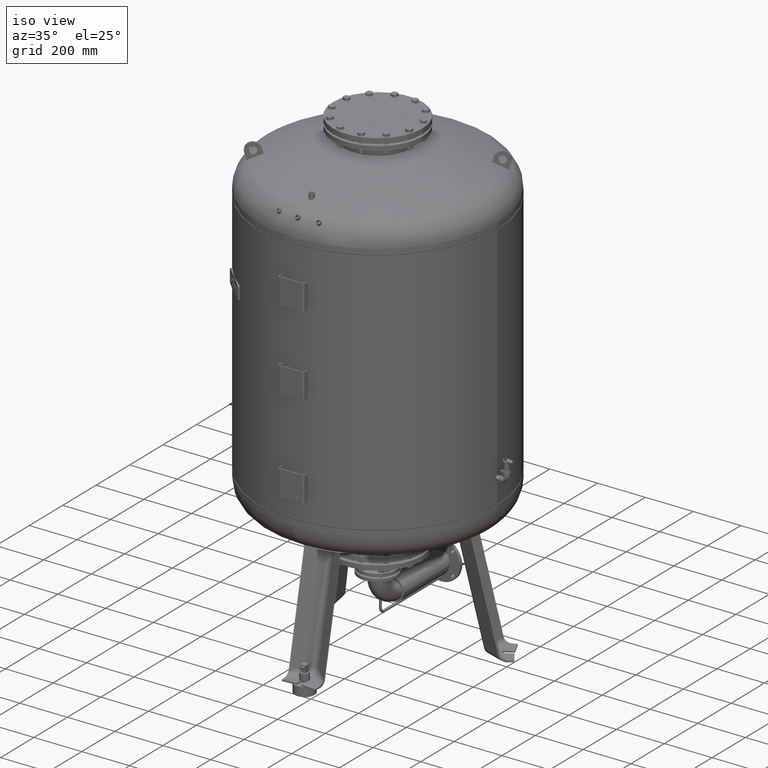
[diagram: clean part render]
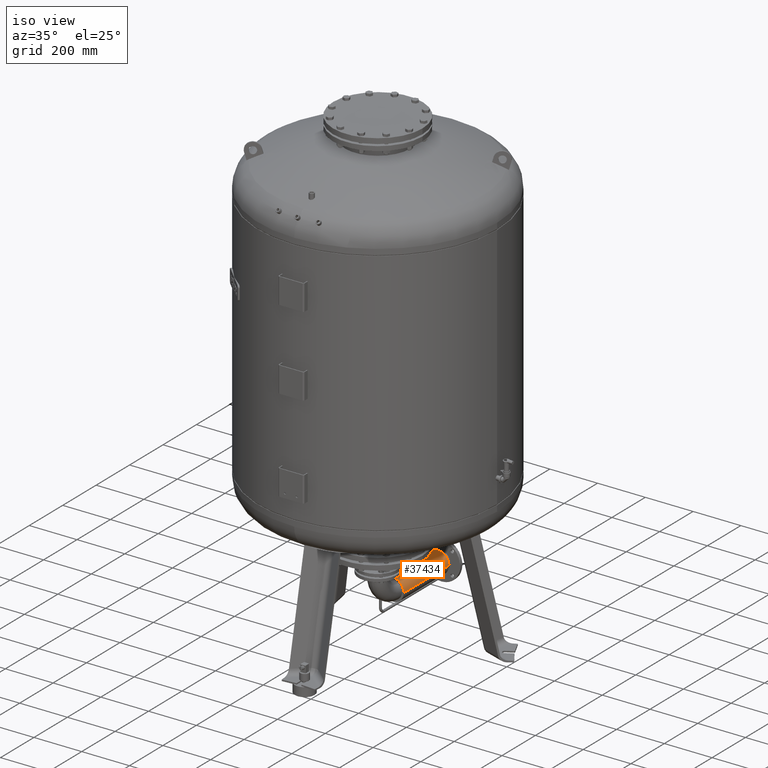
[diagram: same view with one face highlighted and labeled with its STEP entity id]
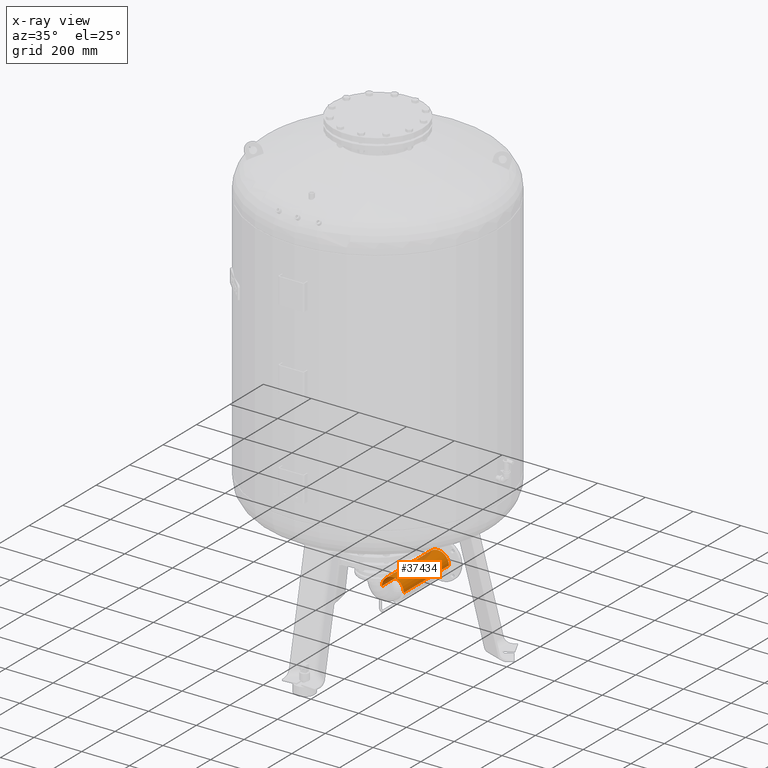
[diagram: x-ray of the same camera — body ghosted, the highlighted face saturated]
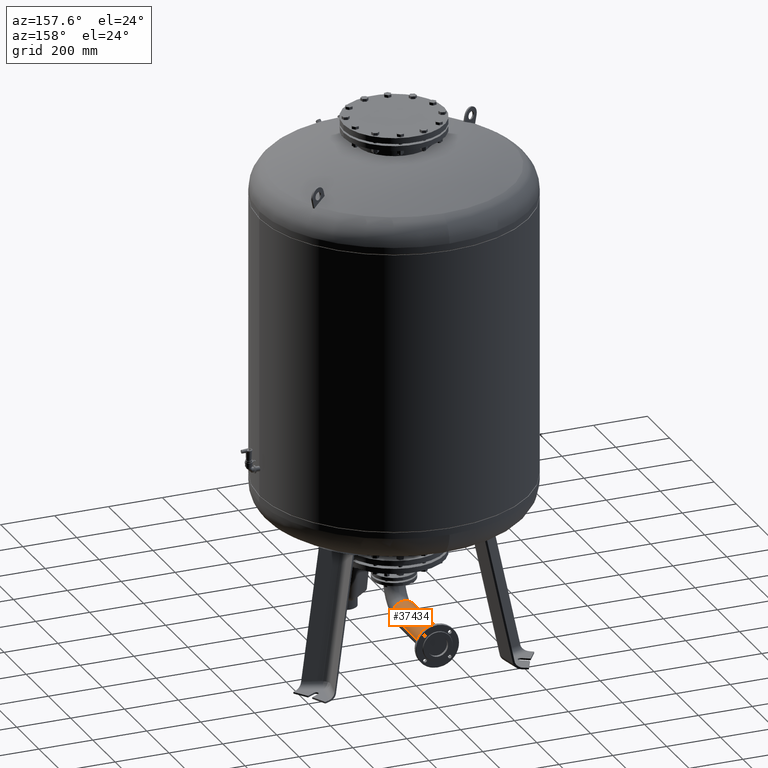
[diagram: same view with one face highlighted and labeled with its STEP entity id]
A machine part, iso view. The second image highlights one B-rep face of the part: STEP entity #37434.
The next image is the same camera in x-ray: the body ghosted, the highlighted face saturated — about 9% of this face is hidden behind the body in this view.
A second angle (auxiliary view) of the same face is appended — the face is thin or edge-on in the first view.
In plain terms, the highlighted cylindrical surface (edge-blend (fillet) strip) has radius 46.05 mm, axis along (0, 1, 0).
Its self-contained STEP definition (entity closure, byte-faithful):
#36984=CARTESIAN_POINT('',(-46.050000000000011,360.0,190.0));
#36985=VERTEX_POINT('',#36984);
#36986=CARTESIAN_POINT('',(-46.050000000000011,90.0,190.0));
#36987=VERTEX_POINT('',#36986);
#36988=CARTESIAN_POINT('',(-46.050000000000011,360.0,190.0));
#36989=DIRECTION('',(0.0,-1.0,0.0));
#36990=VECTOR('',#36989,270.0);
#36991=LINE('',#36988,#36990);
#36992=EDGE_CURVE('',#36985,#36987,#36991,.T.);
#36994=CARTESIAN_POINT('',(46.049999999999983,360.0,190.0));
#36995=VERTEX_POINT('',#36994);
#37003=CARTESIAN_POINT('',(46.049999999999983,90.0,190.0));
#37004=VERTEX_POINT('',#37003);
#37005=CARTESIAN_POINT('',(46.049999999999983,360.0,190.0));
#37006=DIRECTION('',(0.0,-1.0,0.0));
#37007=VECTOR('',#37006,270.0);
#37008=LINE('',#37005,#37007);
#37009=EDGE_CURVE('',#36995,#37004,#37008,.T.);
#37366=CARTESIAN_POINT('',(-1.359358E-014,90.0,190.0));
#37367=DIRECTION('',(0.0,-1.0,0.0));
#37368=DIRECTION('',(-1.0,0.0,0.0));
#37369=AXIS2_PLACEMENT_3D('',#37366,#37367,#37368);
#37370=CIRCLE('',#37369,46.049999999999997);
#37371=EDGE_CURVE('',#37004,#36987,#37370,.T.);
#37417=CARTESIAN_POINT('',(-1.359358E-014,90.0,190.0));
#37418=DIRECTION('',(0.0,1.0,0.0));
#37419=DIRECTION('',(-1.0,0.0,0.0));
#37420=AXIS2_PLACEMENT_3D('',#37417,#37418,#37419);
#37421=CYLINDRICAL_SURFACE('',#37420,46.049999999999997);
#37422=ORIENTED_EDGE('',*,*,#36992,.T.);
#37423=ORIENTED_EDGE('',*,*,#37371,.F.);
#37424=ORIENTED_EDGE('',*,*,#37009,.F.);
#37425=CARTESIAN_POINT('',(-1.359358E-014,360.0,190.0));
#37426=DIRECTION('',(0.0,-1.0,0.0));
#37427=DIRECTION('',(-1.0,0.0,0.0));
#37428=AXIS2_PLACEMENT_3D('',#37425,#37426,#37427);
#37429=CIRCLE('',#37428,46.049999999999997);
#37430=EDGE_CURVE('',#36995,#36985,#37429,.T.);
#37431=ORIENTED_EDGE('',*,*,#37430,.T.);
#37432=EDGE_LOOP('',(#37422,#37423,#37424,#37431));
#37433=FACE_OUTER_BOUND('',#37432,.T.);
#37434=ADVANCED_FACE('',(#37433),#37421,.T.);